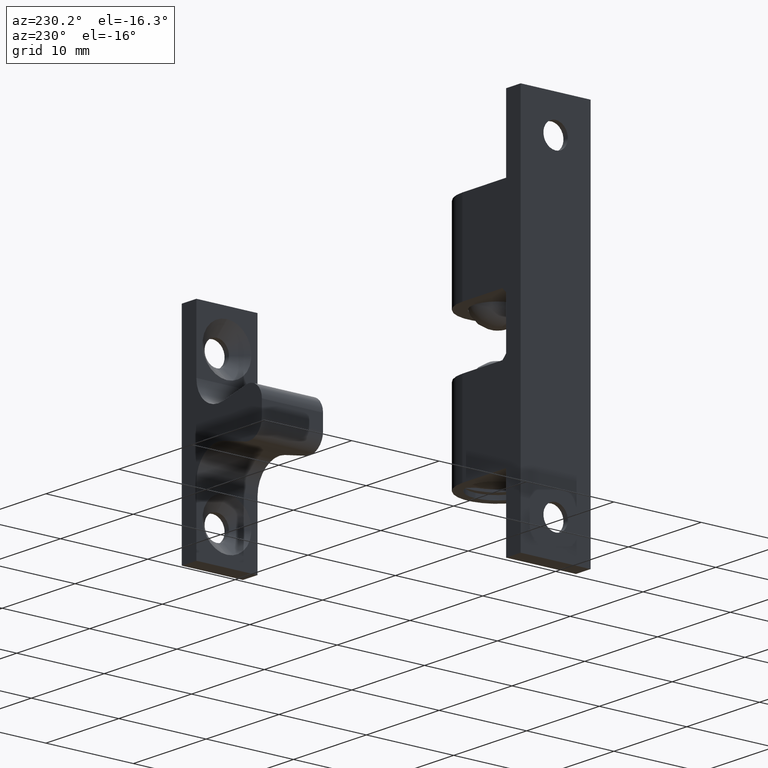
[diagram: clean part render]
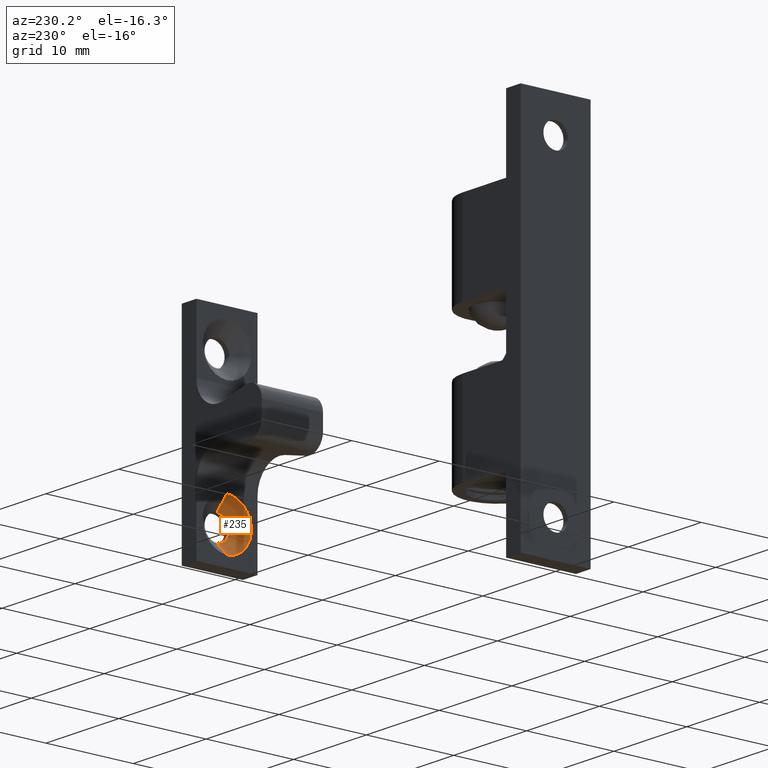
[diagram: same view with one face highlighted and labeled with its STEP entity id]
A machine part, auxiliary view. The second image highlights one B-rep face of the part: STEP entity #235.
In plain terms, the highlighted face is a freeform B-spline surface patch.
Its self-contained STEP definition (entity closure, byte-faithful):
#235=ADVANCED_FACE('',(#589),#588,.F.);
#588=( BOUNDED_SURFACE() B_SPLINE_SURFACE( 2,1,((#1165,#1166),(#1167,#1168),(#1169,#1170),(#1171,#1172),(#1173,#1174)), .UNSPECIFIED.,.F.,.F.,.F.) B_SPLINE_SURFACE_WITH_KNOTS((3,2,3),(2,2),(0.00000000000E+00,5.00000000000E-01,1.00000000000E+00),(0.00000000000E+00,1.00000000000E+00), .UNSPECIFIED. ) GEOMETRIC_REPRESENTATION_ITEM() RATIONAL_B_SPLINE_SURFACE(((1.00000000000E+00,1.00000000000E+00),(7.07106781187E-01,7.07106781187E-01),(1.00000000000E+00,1.00000000000E+00),(7.07106781187E-01,7.07106781187E-01),(1.00000000000E+00,1.00000000000E+00))) REPRESENTATION_ITEM('') SURFACE() );
#589=FACE_OUTER_BOUND('',#1175,.T.);
#1165=CARTESIAN_POINT('',(4.79431752327E+01,0.00000000000E+00,-8.00000000000E+00));
#1166=CARTESIAN_POINT('',(4.39833772581E+01,-4.84935391492E-16,-1.19597979746E+01));
#1167=CARTESIAN_POINT('',(4.79431752327E+01,0.00000000000E+00,-8.00000000000E+00));
#1168=CARTESIAN_POINT('',(4.39833772581E+01,-3.95979797464E+00,-1.19597979746E+01));
#1169=CARTESIAN_POINT('',(4.79431752327E+01,0.00000000000E+00,-8.00000000000E+00));
#1170=CARTESIAN_POINT('',(4.39833772581E+01,-3.95979797464E+00,-8.00000000000E+00));
#1171=CARTESIAN_POINT('',(4.79431752327E+01,0.00000000000E+00,-8.00000000000E+00));
#1172=CARTESIAN_POINT('',(4.39833772581E+01,-3.95979797464E+00,-4.04020202536E+00));
#1173=CARTESIAN_POINT('',(4.79431752327E+01,0.00000000000E+00,-8.00000000000E+00));
#1174=CARTESIAN_POINT('',(4.39833772581E+01,9.86076131526E-32,-4.04020202536E+00));
#1175=EDGE_LOOP('',(#1540,#1541,#1542,#1543));
#1540=ORIENTED_EDGE('',*,*,#1761,.F.);
#1541=ORIENTED_EDGE('',*,*,#1802,.F.);
#1542=ORIENTED_EDGE('',*,*,#1792,.T.);
#1543=ORIENTED_EDGE('',*,*,#1803,.T.);
#1761=EDGE_CURVE('',#2089,#2088,#2096,.T.);
#1792=EDGE_CURVE('',#2300,#2301,#2302,.T.);
#1802=EDGE_CURVE('',#2300,#2089,#2364,.T.);
#1803=EDGE_CURVE('',#2301,#2088,#2370,.T.);
#2088=VERTEX_POINT('',#3121);
#2089=VERTEX_POINT('',#3122);
#2096=CIRCLE('',#3130,2.80000000000E+00);
#2300=VERTEX_POINT('',#3249);
#2301=VERTEX_POINT('',#3250);
#2302=CIRCLE('',#3254,1.40000000000E+00);
#2364=(BOUNDED_CURVE() B_SPLINE_CURVE(1,(#3281,#3282),.UNSPECIFIED.,.F.,.F.) B_SPLINE_CURVE_WITH_KNOTS((2,2),(3.53553396463E-01,7.07106785797E-01),.UNSPECIFIED.) CURVE() GEOMETRIC_REPRESENTATION_ITEM() RATIONAL_B_SPLINE_CURVE((1.00000000000E+00,1.00000000000E+00)) REPRESENTATION_ITEM('') );
#2370=(BOUNDED_CURVE() B_SPLINE_CURVE(1,(#3283,#3284),.UNSPECIFIED.,.F.,.F.) B_SPLINE_CURVE_WITH_KNOTS((2,2),(3.53553390234E-01,7.07106780467E-01),.UNSPECIFIED.) CURVE() GEOMETRIC_REPRESENTATION_ITEM() RATIONAL_B_SPLINE_CURVE((7.50000000000E-01,7.50000000000E-01)) REPRESENTATION_ITEM('') );
#3121=CARTESIAN_POINT('',(4.51431752327E+01,0.00000000000E+00,-1.08000000000E+01));
#3122=CARTESIAN_POINT('',(4.51431752327E+01,1.48029736617E-16,-5.20000000000E+00));
#3127=CARTESIAN_POINT('',(4.51431752327E+01,0.00000000000E+00,-8.00000000000E+00));
#3128=DIRECTION('',(1.00000000000E+00,0.00000000000E+00,0.00000000000E+00));
#3129=DIRECTION('',(0.00000000000E+00,-1.22460635382E-16,-1.00000000000E+00));
#3130=AXIS2_PLACEMENT_3D('',#3127,#3128,#3129);
#3249=CARTESIAN_POINT('',(4.65431752327E+01,7.40148683083E-17,-6.60000000000E+00));
#3250=CARTESIAN_POINT('',(4.65431752327E+01,0.00000000000E+00,-9.40000000000E+00));
#3251=CARTESIAN_POINT('',(4.65431752327E+01,0.00000000000E+00,-8.00000000000E+00));
#3252=DIRECTION('',(1.00000000000E+00,0.00000000000E+00,0.00000000000E+00));
#3253=DIRECTION('',(0.00000000000E+00,-1.22460635382E-16,-1.00000000000E+00));
#3254=AXIS2_PLACEMENT_3D('',#3251,#3252,#3253);
#3281=CARTESIAN_POINT('',(4.65431752095E+01,3.42889784763E-16,-6.59999997676E+00));
#3282=CARTESIAN_POINT('',(4.51431752145E+01,6.85779562612E-16,-5.19999998174E+00));
#3283=CARTESIAN_POINT('',(4.65431752342E+01,-3.66354906653E-16,-9.39999999858E+00));
#3284=CARTESIAN_POINT('',(4.51431752356E+01,-7.32709813307E-16,-1.07999999972E+01));